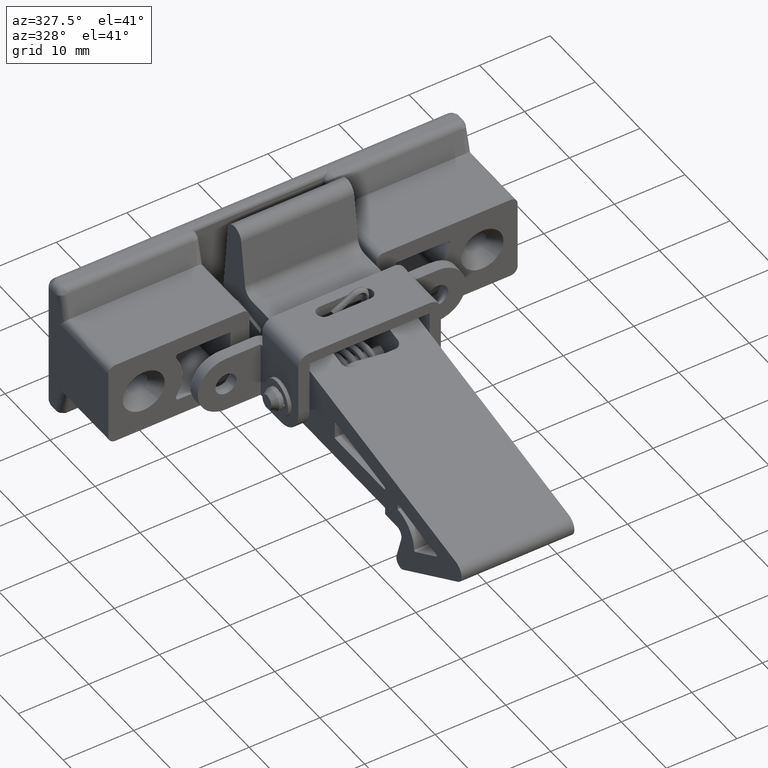
[diagram: clean part render]
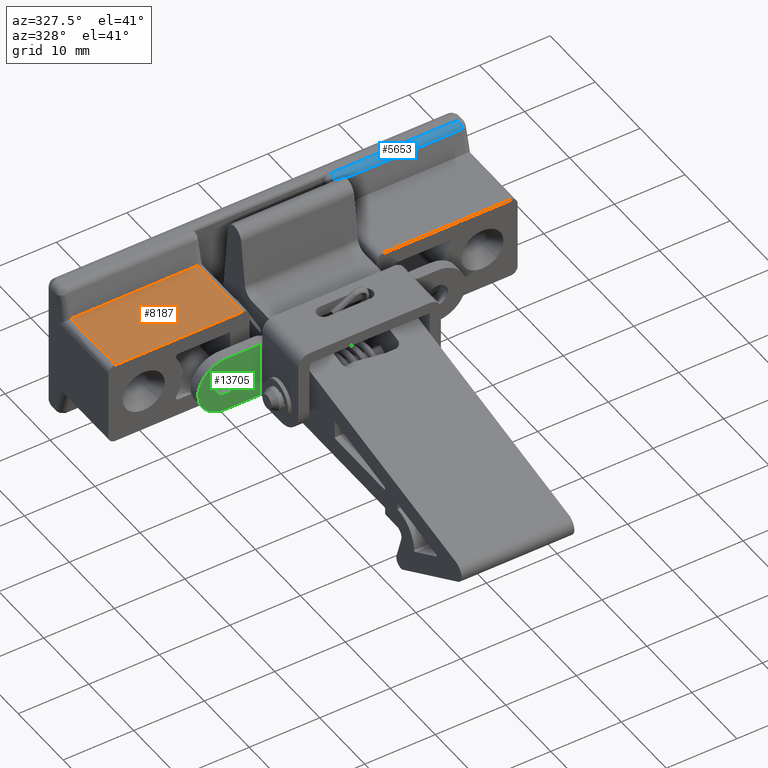
[diagram: same view with three faces highlighted in distinct colors, each labeled with its STEP entity id]
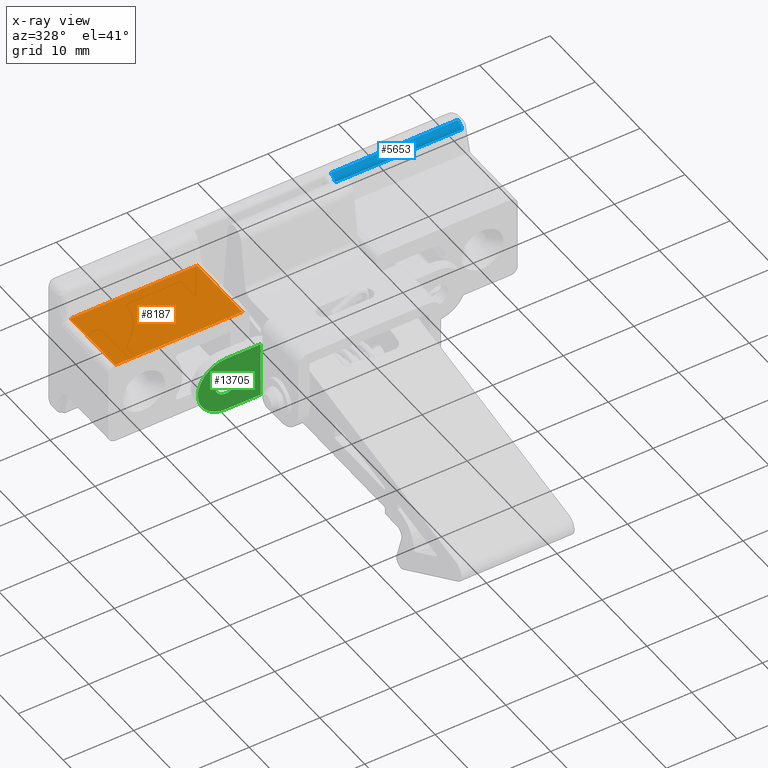
[diagram: x-ray of the same camera — body ghosted, the three highlighted faces saturated]
A machine part, auxiliary view with three faces highlighted in distinct colors.
The next image is the same camera in x-ray (body ghosted, the three faces saturated) — at least one of them is partly hidden behind the body in this view.
Their STEP definitions:

[orange] entity #8187 — the highlighted face is a freeform B-spline surface patch.
#5815=CARTESIAN_POINT('',(-28.0,18.600001574462890,7.0));
#5816=VERTEX_POINT('',#5815);
#5822=CARTESIAN_POINT('',(-10.0,18.600001574462890,7.0));
#5823=VERTEX_POINT('',#5822);
#5824=CARTESIAN_POINT('',(-10.0,18.600001574462890,7.0));
#5825=CARTESIAN_POINT('',(-28.0,18.600001574462890,7.0));
#5826=QUASI_UNIFORM_CURVE('',1,(#5824,#5825),.UNSPECIFIED.,.F.,.U.);
#5827=EDGE_CURVE('',#5823,#5816,#5826,.T.);
#6666=CARTESIAN_POINT('',(-28.0,8.600001574462887,7.0));
#6667=VERTEX_POINT('',#6666);
#6681=CARTESIAN_POINT('',(-28.0,18.600001574462890,7.0));
#6682=CARTESIAN_POINT('',(-28.0,8.600001574462887,7.0));
#6683=QUASI_UNIFORM_CURVE('',1,(#6681,#6682),.UNSPECIFIED.,.F.,.U.);
#6684=EDGE_CURVE('',#5816,#6667,#6683,.T.);
#7442=CARTESIAN_POINT('',(-10.0,8.600001574462887,7.0));
#7443=VERTEX_POINT('',#7442);
#7460=CARTESIAN_POINT('',(-10.0,8.600001574462887,7.0));
#7461=CARTESIAN_POINT('',(-10.0,18.600001574462890,7.0));
#7462=QUASI_UNIFORM_CURVE('',1,(#7460,#7461),.UNSPECIFIED.,.F.,.U.);
#7463=EDGE_CURVE('',#7443,#5823,#7462,.T.);
#8172=CARTESIAN_POINT('',(-28.899099965112509,8.100501593844825,7.0));
#8173=CARTESIAN_POINT('',(-28.899099965112509,19.099501823301861,7.0));
#8174=CARTESIAN_POINT('',(-9.100899552089869,8.100501593844825,7.0));
#8175=CARTESIAN_POINT('',(-9.100899552089869,19.099501823301861,7.0));
#8176=B_SPLINE_SURFACE_WITH_KNOTS('',1,1,((#8172,#8174),(#8173,#8175)),.UNSPECIFIED.,.F.,.F.,.U.,(2,2),(2,2),(0.0,10.999000229457041),(0.0,19.798200413022641),.UNSPECIFIED.);
#8177=ORIENTED_EDGE('',*,*,#5827,.T.);
#8178=ORIENTED_EDGE('',*,*,#6684,.T.);
#8179=CARTESIAN_POINT('',(-10.0,8.600001574462887,7.0));
#8180=CARTESIAN_POINT('',(-28.0,8.600001574462887,7.0));
#8181=QUASI_UNIFORM_CURVE('',1,(#8179,#8180),.UNSPECIFIED.,.F.,.U.);
#8182=EDGE_CURVE('',#7443,#6667,#8181,.T.);
#8183=ORIENTED_EDGE('',*,*,#8182,.F.);
#8184=ORIENTED_EDGE('',*,*,#7463,.T.);
#8185=EDGE_LOOP('',(#8177,#8178,#8183,#8184));
#8186=FACE_OUTER_BOUND('',#8185,.T.);
#8187=ADVANCED_FACE('',(#8186),#8176,.F.);

[blue] entity #5653 — the highlighted face is a freeform B-spline surface patch.
#5597=CARTESIAN_POINT('',(28.449999999999999,20.406954929175068,10.999657324975560));
#5598=CARTESIAN_POINT('',(9.538750000000000,20.406954929175068,10.999657324975560));
#5599=CARTESIAN_POINT('',(28.450000000000006,19.568142836484427,11.021622392646046));
#5600=CARTESIAN_POINT('',(9.538750000000000,19.568142836484427,11.021622392646046));
#5601=CARTESIAN_POINT('',(28.449999999999999,19.400853276246380,10.199367934417200));
#5602=CARTESIAN_POINT('',(9.538750000000000,19.400853276246380,10.199367934417200));
#5610=(BOUNDED_SURFACE()B_SPLINE_SURFACE(1,2,((#5597,#5599,#5601),(#5598,#5600,#5602)),.UNSPECIFIED.,.F.,.F.,.U.)B_SPLINE_SURFACE_WITH_KNOTS((2,2),(3,3),(0.0,18.911249999999999),(0.0,1.0),.UNSPECIFIED.)GEOMETRIC_REPRESENTATION_ITEM()RATIONAL_B_SPLINE_SURFACE(((1.0,0.766044443118978,1.0),(1.0,0.766044443118978,1.0)))REPRESENTATION_ITEM('')SURFACE());
#5611=CARTESIAN_POINT('',(28.0,19.410635480721879,10.242535625036320));
#5612=VERTEX_POINT('',#5611);
#5613=CARTESIAN_POINT('',(10.0,19.410635480721879,10.242535625036320));
#5614=VERTEX_POINT('',#5613);
#5615=CARTESIAN_POINT('',(28.0,19.410635480721879,10.242535625036320));
#5616=CARTESIAN_POINT('',(10.0,19.410635480721879,10.242535625036320));
#5617=QUASI_UNIFORM_CURVE('',1,(#5615,#5616),.UNSPECIFIED.,.F.,.U.);
#5618=EDGE_CURVE('',#5612,#5614,#5617,.T.);
#5619=ORIENTED_EDGE('',*,*,#5618,.F.);
#5620=CARTESIAN_POINT('',(28.0,20.380777980867190,11.0));
#5621=VERTEX_POINT('',#5620);
#5622=CARTESIAN_POINT('',(28.0,19.410635480721879,10.242535625036320));
#5623=CARTESIAN_POINT('',(28.000000000000011,19.437369208274401,10.349748206398280));
#5624=CARTESIAN_POINT('',(28.000000000000028,19.521314313652798,10.542250612251269));
#5625=CARTESIAN_POINT('',(27.999999999999972,19.696454709927000,10.741343297488701));
#5626=CARTESIAN_POINT('',(28.000000000000071,19.899267753177998,10.886596603942250));
#5627=CARTESIAN_POINT('',(27.999999999999812,20.118371256023490,10.977578431086719));
#5628=CARTESIAN_POINT('',(28.000000000000210,20.297918506842610,11.000017234247951));
#5629=CARTESIAN_POINT('',(28.0,20.380777980867190,11.0));
#5630=B_SPLINE_CURVE_WITH_KNOTS('',3,(#5622,#5623,#5624,#5625,#5626,#5627,#5628,#5629),.UNSPECIFIED.,.F.,.U.,(4,1,1,1,1,4),(0.000000138257265,0.331478210788113,0.621528308916971,0.787246037962493,1.077313919965397,1.325912428380550),.UNSPECIFIED.);
#5631=EDGE_CURVE('',#5612,#5621,#5630,.T.);
#5632=ORIENTED_EDGE('',*,*,#5631,.T.);
#5633=CARTESIAN_POINT('',(10.0,20.380777980867190,11.0));
#5634=VERTEX_POINT('',#5633);
#5635=CARTESIAN_POINT('',(10.0,20.380777980867190,11.0));
#5636=CARTESIAN_POINT('',(28.0,20.380777980867190,11.0));
#5637=QUASI_UNIFORM_CURVE('',1,(#5635,#5636),.UNSPECIFIED.,.F.,.U.);
#5638=EDGE_CURVE('',#5634,#5621,#5637,.T.);
#5639=ORIENTED_EDGE('',*,*,#5638,.F.);
#5640=CARTESIAN_POINT('',(10.0,19.410635480721879,10.242535625036320));
#5641=CARTESIAN_POINT('',(10.000000000000011,19.437369208274401,10.349748206398280));
#5642=CARTESIAN_POINT('',(10.0,19.521314313652798,10.542250612251269));
#5643=CARTESIAN_POINT('',(9.999999999999989,19.696454709927000,10.741343297488701));
#5644=CARTESIAN_POINT('',(10.000000000000030,19.899267753177998,10.886596603942250));
#5645=CARTESIAN_POINT('',(9.999999999999929,20.118371256023490,10.977578431086719));
#5646=CARTESIAN_POINT('',(10.000000000000069,20.297918506842610,11.000017234247951));
#5647=CARTESIAN_POINT('',(10.0,20.380777980867190,11.0));
#5648=B_SPLINE_CURVE_WITH_KNOTS('',3,(#5640,#5641,#5642,#5643,#5644,#5645,#5646,#5647),.UNSPECIFIED.,.F.,.U.,(4,1,1,1,1,4),(0.000000138257265,0.331478210788113,0.621528308916971,0.787246037962493,1.077313919965397,1.325912428380550),.UNSPECIFIED.);
#5649=EDGE_CURVE('',#5614,#5634,#5648,.T.);
#5650=ORIENTED_EDGE('',*,*,#5649,.F.);
#5651=EDGE_LOOP('',(#5619,#5632,#5639,#5650));
#5652=FACE_OUTER_BOUND('',#5651,.T.);
#5653=ADVANCED_FACE('',(#5652),#5610,.T.);

[green] entity #13705 — the highlighted face is a freeform B-spline surface patch.
#11769=CARTESIAN_POINT('',(-13.948636239959781,4.399999999999794,-0.069875819571009));
#11770=VERTEX_POINT('',#11769);
#11771=CARTESIAN_POINT('',(-14.999999966356629,4.400000000000071,-0.500000000000000));
#11772=VERTEX_POINT('',#11771);
#11773=CARTESIAN_POINT('',(-13.948636239959781,4.399999999999794,-0.069875819571009));
#11774=CARTESIAN_POINT('',(-14.078377594598731,4.399999999999835,-0.197598513885794));
#11775=CARTESIAN_POINT('',(-14.405581051089561,4.399999999999902,-0.418492105269380));
#11776=CARTESIAN_POINT('',(-14.793655617381260,4.400000000000024,-0.500265455874395));
#11777=CARTESIAN_POINT('',(-14.999999966356629,4.400000000000071,-0.500000000000000));
#11778=B_SPLINE_CURVE_WITH_KNOTS('',3,(#11773,#11774,#11775,#11776,#11777),.UNSPECIFIED.,.F.,.U.,(4,1,4),(0.000000062268596,0.546127801729153,1.165035634307967),.UNSPECIFIED.);
#11779=EDGE_CURVE('',#11770,#11772,#11778,.T.);
#11821=CARTESIAN_POINT('',(-16.051363760040221,4.399999999999793,2.069875819571009));
#11822=VERTEX_POINT('',#11821);
#11828=CARTESIAN_POINT('',(-16.500000000000000,4.400000000000071,1.0));
#11829=VERTEX_POINT('',#11828);
#11830=CARTESIAN_POINT('',(-16.500000000000000,4.400000000000071,1.0));
#11831=CARTESIAN_POINT('',(-16.500072612494389,4.400000000000027,1.161305116117896));
#11832=CARTESIAN_POINT('',(-16.435382322867099,4.399999999999936,1.558366300454602));
#11833=CARTESIAN_POINT('',(-16.219897554898189,4.399999999999828,1.904879797943418));
#11834=CARTESIAN_POINT('',(-16.051363760040221,4.399999999999793,2.069875819571009));
#11835=B_SPLINE_CURVE_WITH_KNOTS('',3,(#11830,#11831,#11832,#11833,#11834),.UNSPECIFIED.,.F.,.U.,(4,1,4),(0.000000069555838,0.483935973384196,1.191217976494935),.UNSPECIFIED.);
#11836=EDGE_CURVE('',#11829,#11822,#11835,.T.);
#11838=CARTESIAN_POINT('',(-14.999999966356629,4.400000000000071,-0.500000000000000));
#11839=CARTESIAN_POINT('',(-15.147264369127820,4.400000000000071,-0.500065012596619));
#11840=CARTESIAN_POINT('',(-15.417213772644610,4.400000000000067,-0.459915380780852));
#11841=CARTESIAN_POINT('',(-15.790224679677710,4.400000000000073,-0.294577350613631));
#11842=CARTESIAN_POINT('',(-16.128710586461001,4.400000000000066,-0.023792849244824));
#11843=CARTESIAN_POINT('',(-16.419329246808591,4.400000000000085,0.411092603778019));
#11844=CARTESIAN_POINT('',(-16.500255211804792,4.400000000000066,0.791348531897152));
#11845=CARTESIAN_POINT('',(-16.500000000000000,4.400000000000071,1.0));
#11846=B_SPLINE_CURVE_WITH_KNOTS('',3,(#11838,#11839,#11840,#11841,#11842,#11843,#11844,#11845),.UNSPECIFIED.,.F.,.U.,(4,1,1,1,1,4),(0.000000249047128,0.441788351125053,0.809968188795397,1.214907298471116,1.730371615735361,2.356253635489769),.UNSPECIFIED.);
#11847=EDGE_CURVE('',#11772,#11829,#11846,.T.);
#11870=CARTESIAN_POINT('',(-13.500000000000000,4.400000000000071,1.0));
#11871=VERTEX_POINT('',#11870);
#11872=CARTESIAN_POINT('',(-13.500000000000000,4.400000000000071,1.0));
#11873=CARTESIAN_POINT('',(-13.499937035134920,4.400000000000033,0.838696264415827));
#11874=CARTESIAN_POINT('',(-13.564602796209151,4.399999999999918,0.441630800654945));
#11875=CARTESIAN_POINT('',(-13.780107011276041,4.399999999999846,0.095121422186928));
#11876=CARTESIAN_POINT('',(-13.948636239959781,4.399999999999794,-0.069875819571009));
#11877=B_SPLINE_CURVE_WITH_KNOTS('',3,(#11872,#11873,#11874,#11875,#11876),.UNSPECIFIED.,.F.,.U.,(4,1,4),(0.000000069555639,0.483935973384102,1.191217976494938),.UNSPECIFIED.);
#11878=EDGE_CURVE('',#11871,#11770,#11877,.T.);
#11880=CARTESIAN_POINT('',(-15.000000033643371,4.400000000000070,2.500000000000000));
#11881=VERTEX_POINT('',#11880);
#11882=CARTESIAN_POINT('',(-15.000000033643371,4.400000000000070,2.500000000000000));
#11883=CARTESIAN_POINT('',(-14.840455170311809,4.400000000000069,2.500087107810328));
#11884=CARTESIAN_POINT('',(-14.545983878181570,4.400000000000073,2.452562289268521));
#11885=CARTESIAN_POINT('',(-14.123032832560710,4.400000000000069,2.246186990850994));
#11886=CARTESIAN_POINT('',(-13.816358509188410,4.400000000000071,1.954266451487740));
#11887=CARTESIAN_POINT('',(-13.567724542206919,4.400000000000067,1.527462921797189));
#11888=CARTESIAN_POINT('',(-13.499723017676381,4.400000000000073,1.208688759662139));
#11889=CARTESIAN_POINT('',(-13.500000000000000,4.400000000000071,1.0));
#11890=B_SPLINE_CURVE_WITH_KNOTS('',3,(#11882,#11883,#11884,#11885,#11886,#11887,#11888,#11889),.UNSPECIFIED.,.F.,.U.,(4,1,1,1,1,4),(0.000000249048504,0.478612599661490,0.883619141026313,1.399008653570375,1.730371615735793,2.356253635489741),.UNSPECIFIED.);
#11891=EDGE_CURVE('',#11881,#11871,#11890,.T.);
#11893=CARTESIAN_POINT('',(-16.051363760040221,4.399999999999793,2.069875819571009));
#11894=CARTESIAN_POINT('',(-15.921604419255450,4.399999999999827,2.197571808375741));
#11895=CARTESIAN_POINT('',(-15.594443961179460,4.399999999999913,2.418527628715381));
#11896=CARTESIAN_POINT('',(-15.206335694648679,4.400000000000016,2.500261373538680));
#11897=CARTESIAN_POINT('',(-15.000000033643371,4.400000000000070,2.500000000000000));
#11898=B_SPLINE_CURVE_WITH_KNOTS('',3,(#11893,#11894,#11895,#11896,#11897),.UNSPECIFIED.,.F.,.U.,(4,1,4),(0.000000062268221,0.546127801728955,1.165035634307969),.UNSPECIFIED.);
#11899=EDGE_CURVE('',#11822,#11881,#11898,.T.);
#13615=CARTESIAN_POINT('',(-10.100000000000000,4.400000000000000,5.0));
#13616=VERTEX_POINT('',#13615);
#13622=CARTESIAN_POINT('',(-10.100000000000000,4.400000000000000,-3.0));
#13623=VERTEX_POINT('',#13622);
#13624=CARTESIAN_POINT('',(-10.100000000000000,4.400000000000000,-3.0));
#13625=CARTESIAN_POINT('',(-10.100000000000000,4.400000000000000,5.0));
#13626=QUASI_UNIFORM_CURVE('',1,(#13624,#13625),.UNSPECIFIED.,.F.,.U.);
#13627=EDGE_CURVE('',#13623,#13616,#13626,.T.);
#13648=CARTESIAN_POINT('',(-19.444554982749420,4.400000000000000,-3.399599984494448));
#13649=CARTESIAN_POINT('',(-9.655444778533354,4.400000000000000,-3.399599984494448));
#13650=CARTESIAN_POINT('',(-19.444554982749420,4.400000000000000,5.399600199071169));
#13651=CARTESIAN_POINT('',(-9.655444778533354,4.400000000000000,5.399600199071169));
#13652=B_SPLINE_SURFACE_WITH_KNOTS('',1,1,((#13648,#13650),(#13649,#13651)),.UNSPECIFIED.,.F.,.F.,.U.,(2,2),(2,2),(0.0,9.789110204216069),(0.0,8.799200183565617),.UNSPECIFIED.);
#13653=CARTESIAN_POINT('',(-14.999999999999879,4.400000000000000,5.0));
#13654=VERTEX_POINT('',#13653);
#13655=CARTESIAN_POINT('',(-18.999999999999378,4.400000000000001,0.999998002315707));
#13656=VERTEX_POINT('',#13655);
#13657=CARTESIAN_POINT('',(-14.999999999999879,4.400000000000000,5.0));
#13658=CARTESIAN_POINT('',(-15.392716858308740,4.400000000000010,5.000161795534150));
#13659=CARTESIAN_POINT('',(-15.998019039511210,4.399999999999992,4.910105498085846));
#13660=CARTESIAN_POINT('',(-16.884198218831870,4.400000000000002,4.562004837134659));
#13661=CARTESIAN_POINT('',(-17.531558783228689,4.399999999999993,4.135188825344854));
#13662=CARTESIAN_POINT('',(-18.177572429016362,4.400000000000008,3.481198235535063));
#13663=CARTESIAN_POINT('',(-18.654621966964129,4.399999999999981,2.727935040078170));
#13664=CARTESIAN_POINT('',(-18.943608030090729,4.400000000000042,1.834480019193149));
#13665=CARTESIAN_POINT('',(-19.000025524657101,4.399999999999958,1.261794477427789));
#13666=CARTESIAN_POINT('',(-18.999999999999378,4.400000000000001,0.999998002315707));
#13667=B_SPLINE_CURVE_WITH_KNOTS('',3,(#13657,#13658,#13659,#13660,#13661,#13662,#13663,#13664,#13665,#13666),.UNSPECIFIED.,.F.,.U.,(4,1,1,1,1,1,1,4),(0.000000140232683,1.178094194028395,1.816251804359379,2.847123661753485,3.485225443075832,4.565152519446328,5.497830234502340,6.283225857447897),.UNSPECIFIED.);
#13668=EDGE_CURVE('',#13654,#13656,#13667,.T.);
#13669=ORIENTED_EDGE('',*,*,#13668,.T.);
#13670=CARTESIAN_POINT('',(-14.999999999999879,4.400000000000000,-3.0));
#13671=VERTEX_POINT('',#13670);
#13672=CARTESIAN_POINT('',(-18.999999999999378,4.400000000000001,0.999998002315707));
#13673=CARTESIAN_POINT('',(-19.000286523998678,4.400000000000000,0.558172587074248));
#13674=CARTESIAN_POINT('',(-18.860314022264021,4.400000000000011,-0.276127982799577));
#13675=CARTESIAN_POINT('',(-18.319526738369952,4.399999999999993,-1.318608556318823));
#13676=CARTESIAN_POINT('',(-17.724710117674672,4.399999999999993,-1.958658480395494));
#13677=CARTESIAN_POINT('',(-17.108897970644080,4.399999999999998,-2.421244556856844));
#13678=CARTESIAN_POINT('',(-16.276010788414290,4.400000000000041,-2.853530234063422));
#13679=CARTESIAN_POINT('',(-15.490942805660319,4.399999999999996,-3.000436106446472));
#13680=CARTESIAN_POINT('',(-14.999999999999879,4.400000000000000,-3.0));
#13681=B_SPLINE_CURVE_WITH_KNOTS('',3,(#13672,#13673,#13674,#13675,#13676,#13677,#13678,#13679,#13680),.UNSPECIFIED.,.F.,.U.,(4,1,1,1,1,1,4),(0.000000140933290,1.325366045350489,2.503499605427095,3.485224190738963,3.927007216075115,4.810594611191011,6.283223605577953),.UNSPECIFIED.);
#13682=EDGE_CURVE('',#13656,#13671,#13681,.T.);
#13683=ORIENTED_EDGE('',*,*,#13682,.T.);
#13684=CARTESIAN_POINT('',(-14.999999999999879,4.400000000000000,-3.0));
#13685=CARTESIAN_POINT('',(-10.100000000000000,4.400000000000000,-3.0));
#13686=QUASI_UNIFORM_CURVE('',1,(#13684,#13685),.UNSPECIFIED.,.F.,.U.);
#13687=EDGE_CURVE('',#13671,#13623,#13686,.T.);
#13688=ORIENTED_EDGE('',*,*,#13687,.T.);
#13689=ORIENTED_EDGE('',*,*,#13627,.T.);
#13690=CARTESIAN_POINT('',(-14.999999999999879,4.400000000000000,5.0));
#13691=CARTESIAN_POINT('',(-10.100000000000000,4.400000000000000,5.0));
#13692=QUASI_UNIFORM_CURVE('',1,(#13690,#13691),.UNSPECIFIED.,.F.,.U.);
#13693=EDGE_CURVE('',#13654,#13616,#13692,.T.);
#13694=ORIENTED_EDGE('',*,*,#13693,.F.);
#13695=EDGE_LOOP('',(#13669,#13683,#13688,#13689,#13694));
#13696=FACE_OUTER_BOUND('',#13695,.T.);
#13697=ORIENTED_EDGE('',*,*,#11847,.T.);
#13698=ORIENTED_EDGE('',*,*,#11836,.T.);
#13699=ORIENTED_EDGE('',*,*,#11899,.T.);
#13700=ORIENTED_EDGE('',*,*,#11891,.T.);
#13701=ORIENTED_EDGE('',*,*,#11878,.T.);
#13702=ORIENTED_EDGE('',*,*,#11779,.T.);
#13703=EDGE_LOOP('',(#13697,#13698,#13699,#13700,#13701,#13702));
#13704=FACE_BOUND('',#13703,.T.);
#13705=ADVANCED_FACE('',(#13696,#13704),#13652,.T.);